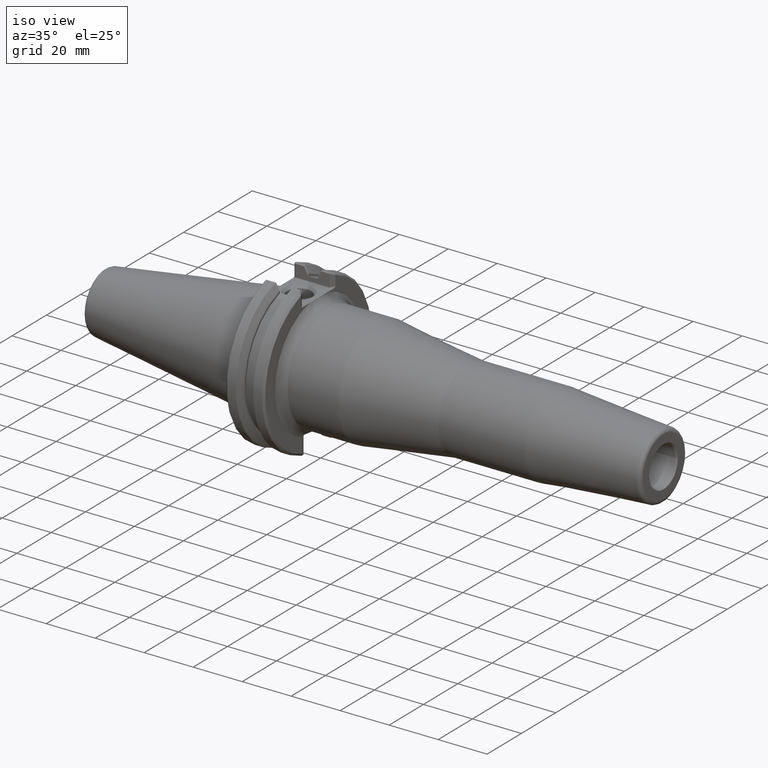
[diagram: clean part render]
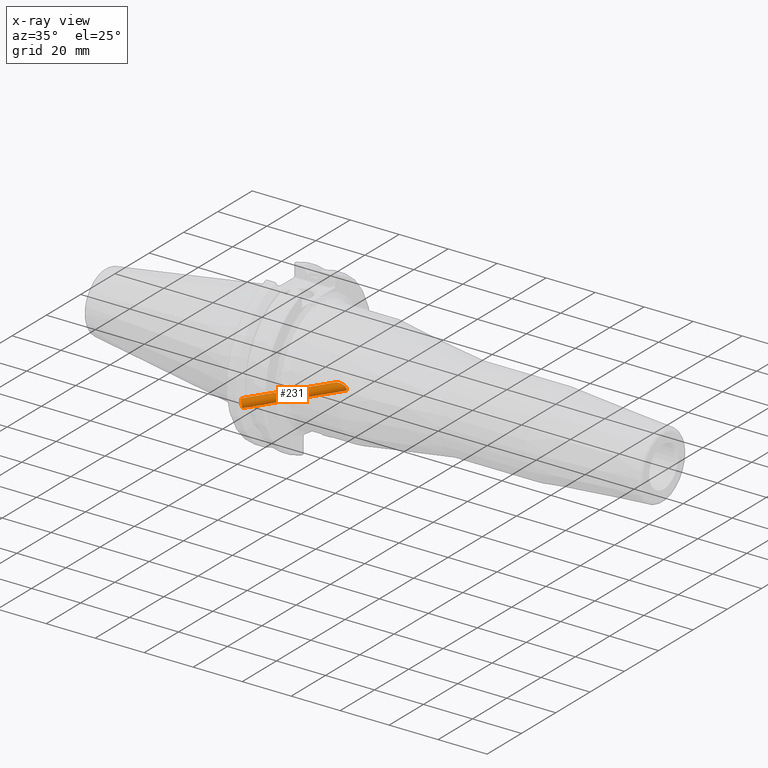
[diagram: x-ray — body ghosted, one internal face saturated and labeled with its STEP entity id]
A machine part, iso view, then the same camera in x-ray: the body is ghosted and one INTERNAL B-rep face — a face not visible from any outside direction — is saturated and labeled: STEP entity #231.
In plain terms, the highlighted cylindrical surface (bore or boss wall) has radius 1.65 mm, axis along (0.8192, 0.539, 0.1962).
Its self-contained STEP definition (entity closure, byte-faithful):
#149=CARTESIAN_POINT('',(5.731887362715521,-25.582310559250171,-9.311199567321024));
#150=VERTEX_POINT('',#149);
#151=CARTESIAN_POINT('',(4.785486242736299,-24.312221192572075,-8.848924842992187));
#152=DIRECTION('',(0.819152044288993,0.538985544695755,0.196174694969011));
#153=DIRECTION('',(0.573576436351045,-0.769751131320058,-0.280166499593236));
#154=AXIS2_PLACEMENT_3D('',#151,#152,#153);
#155=CIRCLE('',#154,1.649999999999998);
#156=EDGE_CURVE('',#150,#150,#155,.T.);
#161=CARTESIAN_POINT('',(21.809385652337436,-13.110838299004524,-4.771954887114974));
#162=DIRECTION('',(0.819152044288993,0.538985544695755,0.196174694969011));
#163=DIRECTION('',(0.573576436351045,-0.769751131320058,-0.280166499593236));
#164=AXIS2_PLACEMENT_3D('',#161,#162,#163);
#165=CYLINDRICAL_SURFACE('',#164,1.649999999999995);
#166=CARTESIAN_POINT('',(32.471849867467988,-5.530818386450406,-3.768946588385424));
#167=VERTEX_POINT('',#166);
#168=CARTESIAN_POINT('',(32.471849867467988,-5.530818386450406,-3.768946588385424));
#169=CARTESIAN_POINT('',(32.885832995321856,-5.530818386450406,-3.768946588385425));
#170=CARTESIAN_POINT('',(33.349794450932642,-5.563699459490528,-3.723069050991530));
#171=CARTESIAN_POINT('',(33.765260209274246,-5.641817186800560,-3.600667888145451));
#172=CARTESIAN_POINT('',(33.941010817865141,-5.674862601111665,-3.548889664716641));
#173=CARTESIAN_POINT('',(34.108167463368233,-5.715514736191706,-3.483715015754913));
#174=CARTESIAN_POINT('',(34.259895934768181,-5.762325198061008,-3.404485089083394));
#175=CARTESIAN_POINT('',(34.372620644468618,-5.797102426596129,-3.345622237561666));
#176=CARTESIAN_POINT('',(34.478535473700603,-5.835546683519175,-3.278669902818980));
#177=CARTESIAN_POINT('',(34.578285350669425,-5.879268063686205,-3.198299148816361));
#178=CARTESIAN_POINT('',(34.775830408625716,-5.965854060997505,-3.039132584005455));
#179=CARTESIAN_POINT('',(34.933945960698473,-6.069945902072263,-2.830942971501830));
#180=CARTESIAN_POINT('',(35.006348745703903,-6.167839163855303,-2.598590090570792));
#181=CARTESIAN_POINT('',(35.078875483661022,-6.265900018069321,-2.365839423485213));
#182=CARTESIAN_POINT('',(35.066487229991672,-6.355533829520550,-2.112612971455235));
#183=CARTESIAN_POINT('',(34.971940582330014,-6.424761157588208,-1.875461137412833));
#184=CARTESIAN_POINT('',(34.881711825174044,-6.490826913775842,-1.649139889942711));
#185=CARTESIAN_POINT('',(34.716568675383634,-6.537805185083738,-1.441882609289619));
#186=CARTESIAN_POINT('',(34.522093206011220,-6.569251061300786,-1.280566633798685));
#187=CARTESIAN_POINT('',(34.378983955963804,-6.592391233051126,-1.161858560499393));
#188=CARTESIAN_POINT('',(34.225876610854328,-6.607651268922304,-1.067955582561802));
#189=CARTESIAN_POINT('',(34.056426970260304,-6.619700633342899,-0.987154463556555));
#190=CARTESIAN_POINT('',(33.706523199795363,-6.644581878459102,-0.820304796017517));
#191=CARTESIAN_POINT('',(33.298835582379049,-6.653635743489503,-0.724865149534202));
#192=CARTESIAN_POINT('',(32.904065149509435,-6.657463987616041,-0.687810776010023));
#193=CARTESIAN_POINT('',(32.744037989541859,-6.659015833915115,-0.672790131945196));
#194=CARTESIAN_POINT('',(32.587903260191297,-6.659584904240082,-0.666963723988319));
#195=CARTESIAN_POINT('',(32.435421772960375,-6.659471269705223,-0.668096413678969));
#196=CARTESIAN_POINT('',(31.815269075501835,-6.659009110235267,-0.672703140566254));
#197=CARTESIAN_POINT('',(31.118742651155610,-6.649765889768571,-0.799926204905649));
#198=CARTESIAN_POINT('',(30.522612955464282,-6.609948705314421,-1.050470619823424));
#199=CARTESIAN_POINT('',(30.344776097753712,-6.598070479791708,-1.125212797218628));
#200=CARTESIAN_POINT('',(30.175719026926181,-6.583225812787457,-1.210742733386982));
#201=CARTESIAN_POINT('',(30.020602799000113,-6.563829076958289,-1.308074255719795));
#202=CARTESIAN_POINT('',(29.907977713975082,-6.549745708305144,-1.378743657141634));
#203=CARTESIAN_POINT('',(29.794441022645213,-6.532178397928388,-1.461053133721040));
#204=CARTESIAN_POINT('',(29.692080750423234,-6.510005123065121,-1.553944563897271));
#205=CARTESIAN_POINT('',(29.535724220285879,-6.476135182665942,-1.695837325479172));
#206=CARTESIAN_POINT('',(29.406296076888992,-6.431382104000777,-1.862422566107056));
#207=CARTESIAN_POINT('',(29.342949094993031,-6.373127789762174,-2.044052980076864));
#208=CARTESIAN_POINT('',(29.303358390235026,-6.336719909120150,-2.157568665896954));
#209=CARTESIAN_POINT('',(29.290371482579658,-6.293862760369271,-2.279836788467399));
#210=CARTESIAN_POINT('',(29.308405620214263,-6.249361284420980,-2.395911923836136));
#211=CARTESIAN_POINT('',(29.350866472148049,-6.144583855116587,-2.669207450128950));
#212=CARTESIAN_POINT('',(29.556236317116131,-6.033884767650283,-2.902759148005736));
#213=CARTESIAN_POINT('',(29.800402844212549,-5.943225552437839,-3.077820729485385));
#214=CARTESIAN_POINT('',(29.976556944103237,-5.877819402616827,-3.204119021383566));
#215=CARTESIAN_POINT('',(30.162125784155119,-5.824230014749467,-3.298892687795037));
#216=CARTESIAN_POINT('',(30.364721347108727,-5.775129334428289,-3.382719553942636));
#217=CARTESIAN_POINT('',(30.956226746299578,-5.631773196265624,-3.627463531553380));
#218=CARTESIAN_POINT('',(31.669737592894890,-5.543761333019547,-3.749938761854260));
#219=CARTESIAN_POINT('',(32.315082730361652,-5.532226667824761,-3.766879146695384));
#220=CARTESIAN_POINT('',(32.367833461866603,-5.531283820360104,-3.768263859526494));
#221=CARTESIAN_POINT('',(32.420123826501374,-5.530818386450406,-3.768946588385425));
#222=CARTESIAN_POINT('',(32.471849867467988,-5.530818386450406,-3.768946588385425));
#223=B_SPLINE_CURVE_WITH_KNOTS('',3,(#168,#169,#170,#171,#172,#173,#174,#175,#176,#177,#178,#179,#180,#181,#182,#183,#184,#185,#186,#187,#188,#189,#190,#191,#192,#193,#194,#195,#196,#197,#198,#199,#200,#201,#202,#203,#204,#205,#206,#207,#208,#209,#210,#211,#212,#213,#214,#215,#216,#217,#218,#219,#220,#221,#222),.UNSPECIFIED.,.T.,.U.,(4,3,3,3,3,3,3,3,3,3,3,3,3,3,3,3,3,3,4),(0.0,0.124194938356159,0.176731965925244,0.215763672543036,0.293062221476131,0.370493104867091,0.444387764769332,0.498764850965573,0.611050409201411,0.656567341306075,0.841687835192626,0.896912809168187,0.937009950986690,0.998258810794042,1.036538227631610,1.126665999936777,1.191688739926442,1.381531504562295,1.397049316852278),.UNSPECIFIED.);
#224=EDGE_CURVE('',#167,#167,#223,.T.);
#225=ORIENTED_EDGE('',*,*,#224,.F.);
#226=EDGE_LOOP('',(#225));
#227=FACE_OUTER_BOUND('',#226,.T.);
#228=ORIENTED_EDGE('',*,*,#156,.F.);
#229=EDGE_LOOP('',(#228));
#230=FACE_BOUND('',#229,.T.);
#231=ADVANCED_FACE('',(#227,#230),#165,.F.);